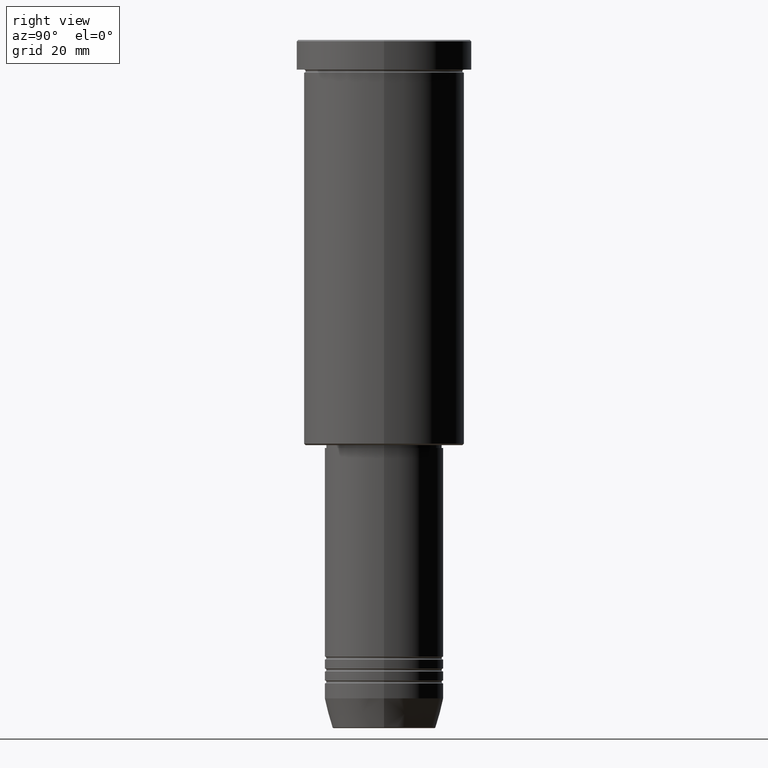
[diagram: clean part render]
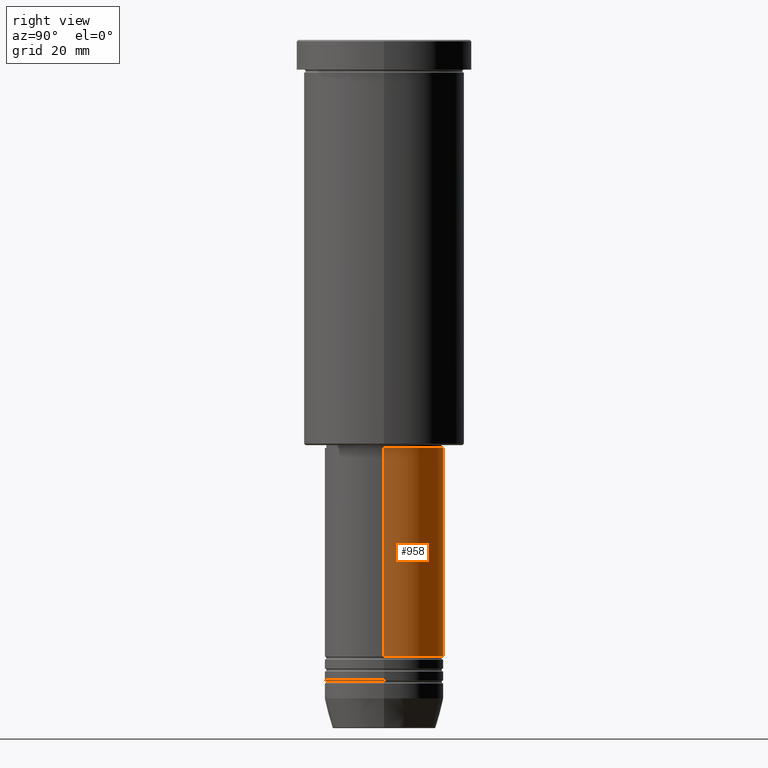
[diagram: same view with one face highlighted and labeled with its STEP entity id]
A machine part, right view. The second image highlights one B-rep face of the part: STEP entity #958.
In plain terms, the highlighted cylindrical surface (partial cylindrical patch) has radius 20 mm, axis along (-0, -0, 1).
Its self-contained STEP definition (entity closure, byte-faithful):
#3 = VECTOR ( 'NONE', #132, 1000.000000000000000 ) ;
#10 = EDGE_LOOP ( 'NONE', ( #726, #217, #1126, #459 ) ) ;
#39 = CARTESIAN_POINT ( 'NONE',  ( 19.99999999999999645, 0.000000000000000000, 0.000000000000000000 ) ) ;
#92 = LINE ( 'NONE', #776, #3 ) ;
#104 = AXIS2_PLACEMENT_3D ( 'NONE', #578, #224, #1051 ) ;
#112 = DIRECTION ( 'NONE',  ( -0.000000000000000000, -0.000000000000000000, 1.000000000000000000 ) ) ;
#117 = LINE ( 'NONE', #39, #239 ) ;
#132 = DIRECTION ( 'NONE',  ( -0.000000000000000000, -0.000000000000000000, 1.000000000000000000 ) ) ;
#205 = FACE_OUTER_BOUND ( 'NONE', #10, .T. ) ;
#217 = ORIENTED_EDGE ( 'NONE', *, *, #808, .T. ) ;
#221 = CIRCLE ( 'NONE', #869, 20.00000000000000000 ) ;
#224 = DIRECTION ( 'NONE',  ( -0.000000000000000000, -0.000000000000000000, 1.000000000000000000 ) ) ;
#239 = VECTOR ( 'NONE', #409, 1000.000000000000000 ) ;
#257 = AXIS2_PLACEMENT_3D ( 'NONE', #937, #112, #1124 ) ;
#268 = DIRECTION ( 'NONE',  ( 1.000000000000000000, 0.000000000000000000, 0.000000000000000000 ) ) ;
#409 = DIRECTION ( 'NONE',  ( -0.000000000000000000, -0.000000000000000000, 1.000000000000000000 ) ) ;
#451 = EDGE_CURVE ( 'NONE', #1034, #746, #1135, .T. ) ;
#456 = CARTESIAN_POINT ( 'NONE',  ( -19.99999999999999645, 2.449293598294706119E-15, -137.0000000000000284 ) ) ;
#459 = ORIENTED_EDGE ( 'NONE', *, *, #472, .F. ) ;
#467 = CARTESIAN_POINT ( 'NONE',  ( 0.000000000000000000, 0.000000000000000000, -206.9999999999999432 ) ) ;
#472 = EDGE_CURVE ( 'NONE', #692, #1034, #117, .T. ) ;
#492 = CARTESIAN_POINT ( 'NONE',  ( -20.00000000000000000, 2.449293598294706513E-15, -206.9999999999999432 ) ) ;
#568 = CYLINDRICAL_SURFACE ( 'NONE', #257, 19.99999999999999645 ) ;
#578 = CARTESIAN_POINT ( 'NONE',  ( 0.000000000000000000, 0.000000000000000000, -137.0000000000000284 ) ) ;
#692 = VERTEX_POINT ( 'NONE', #1107 ) ;
#694 = EDGE_CURVE ( 'NONE', #692, #923, #221, .T. ) ;
#726 = ORIENTED_EDGE ( 'NONE', *, *, #694, .T. ) ;
#746 = VERTEX_POINT ( 'NONE', #456 ) ;
#776 = CARTESIAN_POINT ( 'NONE',  ( -19.99999999999999645, 2.449293598294706119E-15, 0.000000000000000000 ) ) ;
#808 = EDGE_CURVE ( 'NONE', #923, #746, #92, .T. ) ;
#869 = AXIS2_PLACEMENT_3D ( 'NONE', #467, #994, #268 ) ;
#879 = CARTESIAN_POINT ( 'NONE',  ( 19.99999999999999645, 0.000000000000000000, -137.0000000000000284 ) ) ;
#923 = VERTEX_POINT ( 'NONE', #492 ) ;
#937 = CARTESIAN_POINT ( 'NONE',  ( 0.000000000000000000, 0.000000000000000000, 0.000000000000000000 ) ) ;
#958 = ADVANCED_FACE ( 'NONE', ( #205 ), #568, .T. ) ;
#994 = DIRECTION ( 'NONE',  ( -0.000000000000000000, -0.000000000000000000, 1.000000000000000000 ) ) ;
#1034 = VERTEX_POINT ( 'NONE', #879 ) ;
#1051 = DIRECTION ( 'NONE',  ( 1.000000000000000000, 0.000000000000000000, 0.000000000000000000 ) ) ;
#1107 = CARTESIAN_POINT ( 'NONE',  ( 20.00000000000000000, 0.000000000000000000, -206.9999999999999432 ) ) ;
#1124 = DIRECTION ( 'NONE',  ( 1.000000000000000000, 0.000000000000000000, 0.000000000000000000 ) ) ;
#1126 = ORIENTED_EDGE ( 'NONE', *, *, #451, .F. ) ;
#1135 = CIRCLE ( 'NONE', #104, 19.99999999999999645 ) ;